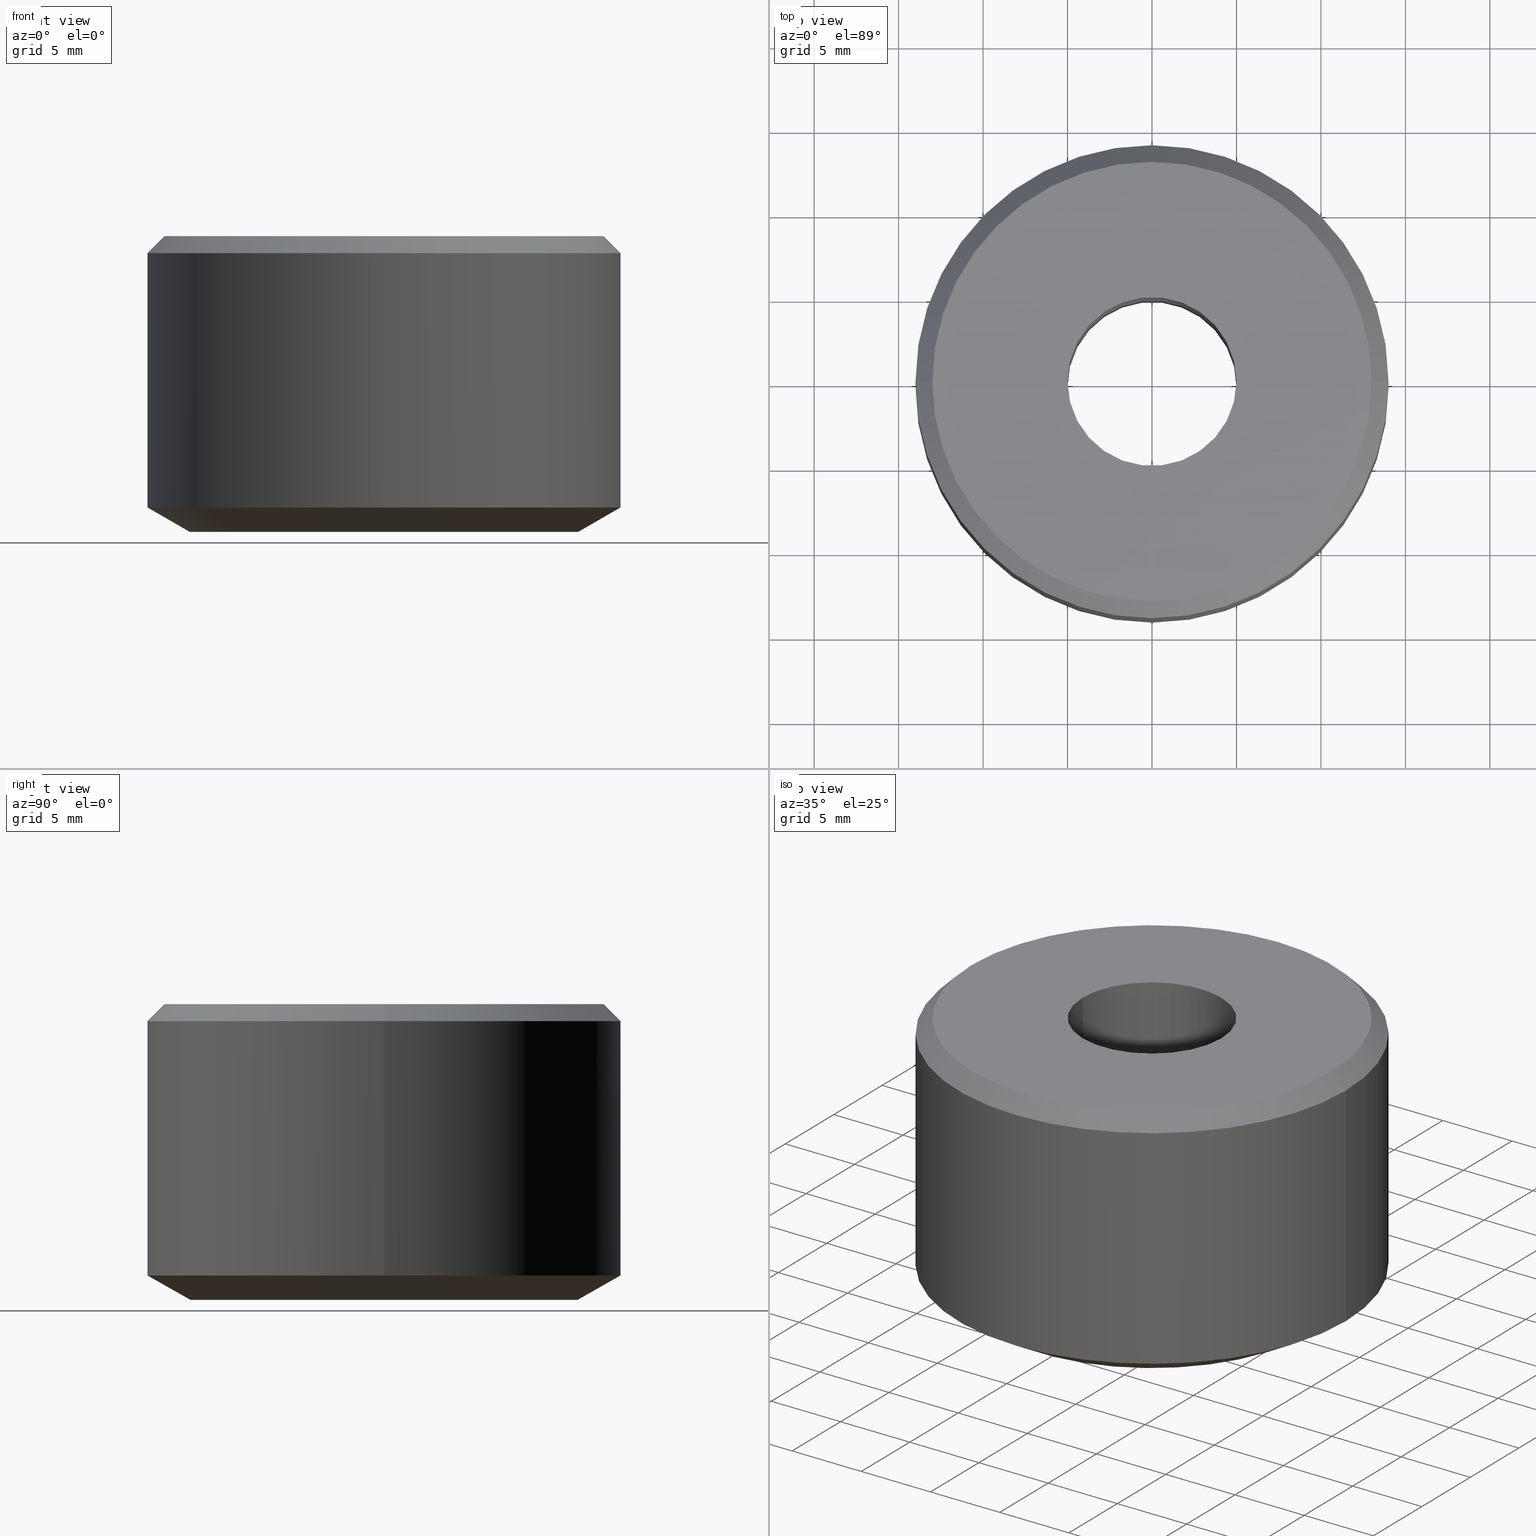
[diagram: canonical four-view strip — front | top / right | iso, engineering-drawing reading convention]
A machine part, canonical four-view strip (front | top / right | iso — engineering-drawing reading convention). The complete STEP part file that produces these views, byte-faithful:
ISO-10303-21;
HEADER;
FILE_DESCRIPTION (( 'STEP AP203' ),
    '1' );
FILE_NAME ('UM ER 16 HEX.STEP',
    '2019-04-22T07:00:55',
    ( '' ),
    ( '' ),
    'SwSTEP 2.0',
    'SolidWorks 2014',
    '' );
FILE_SCHEMA (( 'CONFIG_CONTROL_DESIGN' ));
ENDSEC;

DATA;
#1 = DIRECTION ( 'NONE',  ( 0.0000000000000000000, 0.0000000000000000000, 1.000000000000000000 ) ) ;
#2 = CC_DESIGN_APPROVAL ( #336, ( #246 ) ) ;
#3 = FACE_OUTER_BOUND ( 'NONE', #166, .T. ) ;
#4 = ORIENTED_EDGE ( 'NONE', *, *, #27, .F. ) ;
#5 = CIRCLE ( 'NONE', #317, 14.00000000000001200 ) ;
#6 = ORIENTED_EDGE ( 'NONE', *, *, #293, .T. ) ;
#7 = LOCAL_TIME ( 12, 30, 55.00000000000000000, #71 ) ;
#8 = ORIENTED_EDGE ( 'NONE', *, *, #141, .F. ) ;
#9 = EDGE_LOOP ( 'NONE', ( #316, #244 ) ) ;
#10 = CONICAL_SURFACE ( 'NONE', #29, 14.00000000000001200, 0.7853981633974482800 ) ;
#11 = EDGE_CURVE ( 'NONE', #282, #342, #228, .T. ) ;
#12 = CIRCLE ( 'NONE', #348, 11.50000000000106600 ) ;
#13 = ADVANCED_FACE ( 'NONE', ( #257 ), #55, .T. ) ;
#14 = CALENDAR_DATE ( 2019, 22, 4 ) ;
#15 = EDGE_LOOP ( 'NONE', ( #103, #113, #104, #105 ) ) ;
#16 = AXIS2_PLACEMENT_3D ( 'NONE', #46, #52, #67 ) ;
#17 = VECTOR ( 'NONE', #196, 1000.000000000000000 ) ;
#18 = CONICAL_SURFACE ( 'NONE', #116, 14.00000000000001200, 0.7853981633974482800 ) ;
#19 = CARTESIAN_POINT ( 'NONE',  ( -5.000000000000000000, -5.551115123125782700E-014, 4.611310910794871800E-013 ) ) ;
#20 = DATE_AND_TIME ( #89, #164 ) ;
#21 = ORIENTED_EDGE ( 'NONE', *, *, #99, .T. ) ;
#22 = EDGE_CURVE ( 'NONE', #185, #134, #57, .T. ) ;
#23 = PERSON_AND_ORGANIZATION_ROLE ( 'design_supplier' ) ;
#24 = ORIENTED_EDGE ( 'NONE', *, *, #141, .T. ) ;
#25 = CARTESIAN_POINT ( 'NONE',  ( -14.00000000000001200, -5.551115123125782700E-014, 16.50000000000018100 ) ) ;
#26 = VERTEX_POINT ( 'NONE', #109 ) ;
#27 = EDGE_CURVE ( 'NONE', #161, #101, #286, .T. ) ;
#28 = PERSON_AND_ORGANIZATION ( #259, #125 ) ;
#29 = AXIS2_PLACEMENT_3D ( 'NONE', #132, #117, #41 ) ;
#30 = DIRECTION ( 'NONE',  ( -1.000000000000000000, 0.0000000000000000000, 0.0000000000000000000 ) ) ;
#31 = AXIS2_PLACEMENT_3D ( 'NONE', #346, #170, #220 ) ;
#32 = PERSON_AND_ORGANIZATION_ROLE ( 'design_owner' ) ;
#33 = CARTESIAN_POINT ( 'NONE',  ( -4.999999999999999100, -5.551115123125782700E-014, 17.50000000000007100 ) ) ;
#34 = CARTESIAN_POINT ( 'NONE',  ( 0.0000000000000000000, -5.551115123125782700E-014, 4.831493894172288300E-013 ) ) ;
#35 = CIRCLE ( 'NONE', #50, 4.999999999999999100 ) ;
#36 = ORIENTED_EDGE ( 'NONE', *, *, #283, .T. ) ;
#37 = ORIENTED_EDGE ( 'NONE', *, *, #142, .T. ) ;
#38 = CARTESIAN_POINT ( 'NONE',  ( 0.0000000000000000000, -5.551115123125782700E-014, 17.50000000000007100 ) ) ;
#39 = DIRECTION ( 'NONE',  ( -1.000000000000000000, 0.0000000000000000000, 0.0000000000000000000 ) ) ;
#40 = APPROVAL_ROLE ( '' ) ;
#41 = DIRECTION ( 'NONE',  ( -1.000000000000000000, 0.0000000000000000000, 0.0000000000000000000 ) ) ;
#42 = CYLINDRICAL_SURFACE ( 'NONE', #173, 4.999999999999999100 ) ;
#43 = CARTESIAN_POINT ( 'NONE',  ( 0.0000000000000000000, -5.551115123125782700E-014, 4.440892098500626200E-013 ) ) ;
#44 = EDGE_CURVE ( 'NONE', #26, #118, #325, .T. ) ;
#45 = LOCAL_TIME ( 12, 30, 55.00000000000000000, #119 ) ;
#46 = CARTESIAN_POINT ( 'NONE',  ( 0.0000000000000000000, -5.551115123125782700E-014, 4.611310910794871800E-013 ) ) ;
#47 = AXIS2_PLACEMENT_3D ( 'NONE', #292, #176, #332 ) ;
#48 = LINE ( 'NONE', #263, #262 ) ;
#49 = VERTEX_POINT ( 'NONE', #19 ) ;
#50 = AXIS2_PLACEMENT_3D ( 'NONE', #81, #165, #150 ) ;
#51 = CALENDAR_DATE ( 2019, 22, 4 ) ;
#52 = DIRECTION ( 'NONE',  ( -0.0000000000000000000, -0.0000000000000000000, -1.000000000000000000 ) ) ;
#53 = DIRECTION ( 'NONE',  ( -0.0000000000000000000, -0.0000000000000000000, -1.000000000000000000 ) ) ;
#54 = ORIENTED_EDGE ( 'NONE', *, *, #142, .F. ) ;
#55 = CONICAL_SURFACE ( 'NONE', #31, 11.50000000000106600, 1.047197551196591000 ) ;
#56 = LINE ( 'NONE', #124, #270 ) ;
#57 = CIRCLE ( 'NONE', #47, 14.00000000000001200 ) ;
#58 = PERSON_AND_ORGANIZATION ( #259, #125 ) ;
#59 = AXIS2_PLACEMENT_3D ( 'NONE', #326, #233, #260 ) ;
#60 = ADVANCED_FACE ( 'NONE', ( #169 ), #217, .T. ) ;
#61 = ORIENTED_EDGE ( 'NONE', *, *, #209, .T. ) ;
#62 = CARTESIAN_POINT ( 'NONE',  ( -14.00000000000001200, -5.551115123125782700E-014, 16.50000000000018100 ) ) ;
#63 = CIRCLE ( 'NONE', #187, 11.50000000000106600 ) ;
#64 = AXIS2_PLACEMENT_3D ( 'NONE', #206, #183, #195 ) ;
#65 = DATE_TIME_ROLE ( 'classification_date' ) ;
#66 = LINE ( 'NONE', #135, #17 ) ;
#67 = DIRECTION ( 'NONE',  ( -1.000000000000000000, 0.0000000000000000000, 0.0000000000000000000 ) ) ;
#68 = CARTESIAN_POINT ( 'NONE',  ( -4.999999999999999100, -5.551115123125782700E-014, 4.831493894172288300E-013 ) ) ;
#69 = FACE_OUTER_BOUND ( 'NONE', #251, .T. ) ;
#70 = PERSON_AND_ORGANIZATION_ROLE ( 'creator' ) ;
#71 = COORDINATED_UNIVERSAL_TIME_OFFSET ( 5, 30, .AHEAD. ) ;
#72 = CARTESIAN_POINT ( 'NONE',  ( 11.50000000000106600, -5.551115123125782700E-014, 4.440892098500626200E-013 ) ) ;
#73 =( GEOMETRIC_REPRESENTATION_CONTEXT ( 3 ) GLOBAL_UNCERTAINTY_ASSIGNED_CONTEXT ( ( #245 ) ) GLOBAL_UNIT_ASSIGNED_CONTEXT ( ( #85, #204, #102 ) ) REPRESENTATION_CONTEXT ( 'NONE', 'WORKASPACE' ) );
#74 = ORIENTED_EDGE ( 'NONE', *, *, #107, .F. ) ;
#75 = ORIENTED_EDGE ( 'NONE', *, *, #11, .T. ) ;
#76 = DIRECTION ( 'NONE',  ( -1.000000000000000000, 0.0000000000000000000, 0.0000000000000000000 ) ) ;
#77 = CC_DESIGN_PERSON_AND_ORGANIZATION_ASSIGNMENT ( #230, #318, ( #246 ) ) ;
#78 = DIRECTION ( 'NONE',  ( 0.7071067811865474600, 8.659560562354931600E-017, -0.7071067811865475700 ) ) ;
#79 = APPLICATION_PROTOCOL_DEFINITION ( 'international standard', 'config_control_design', 1994, #163 ) ;
#80 = LOCAL_TIME ( 12, 30, 55.00000000000000000, #159 ) ;
#81 = CARTESIAN_POINT ( 'NONE',  ( 0.0000000000000000000, -5.551115123125782700E-014, 17.50000000000007100 ) ) ;
#82 = AXIS2_PLACEMENT_3D ( 'NONE', #149, #158, #153 ) ;
#83 = ADVANCED_BREP_SHAPE_REPRESENTATION ( 'UM ER 16 HEX', ( #255, #313 ), #73 ) ;
#84 = CARTESIAN_POINT ( 'NONE',  ( 0.0000000000000000000, -5.551115123125782700E-014, 4.831493894172288300E-013 ) ) ;
#85 =( LENGTH_UNIT ( ) NAMED_UNIT ( * ) SI_UNIT ( .MILLI., .METRE. ) );
#86 = EDGE_CURVE ( 'NONE', #26, #177, #12, .T. ) ;
#87 = CARTESIAN_POINT ( 'NONE',  ( 0.0000000000000000000, -5.551115123125782700E-014, 16.50000000000018100 ) ) ;
#88 = ORIENTED_EDGE ( 'NONE', *, *, #344, .T. ) ;
#89 = CALENDAR_DATE ( 2019, 22, 4 ) ;
#90 = CIRCLE ( 'NONE', #106, 14.00000000000001200 ) ;
#91 = AXIS2_PLACEMENT_3D ( 'NONE', #238, #140, #148 ) ;
#92 = CARTESIAN_POINT ( 'NONE',  ( 14.00000000000001200, -5.379664571245152900E-014, 4.831493894172288300E-013 ) ) ;
#93 = ORIENTED_EDGE ( 'NONE', *, *, #283, .F. ) ;
#94 = CARTESIAN_POINT ( 'NONE',  ( -14.00000000000001200, -5.379664571245152900E-014, 1.443375672973923300 ) ) ;
#95 = PERSON_AND_ORGANIZATION ( #259, #125 ) ;
#96 = DIRECTION ( 'NONE',  ( -0.0000000000000000000, -0.0000000000000000000, -1.000000000000000000 ) ) ;
#97 = DIRECTION ( 'NONE',  ( -1.000000000000000000, 0.0000000000000000000, 0.0000000000000000000 ) ) ;
#98 = DIRECTION ( 'NONE',  ( -1.000000000000000000, 0.0000000000000000000, 0.0000000000000000000 ) ) ;
#99 = EDGE_CURVE ( 'NONE', #324, #118, #90, .T. ) ;
#100 = DIRECTION ( 'NONE',  ( 1.000000000000000000, 0.0000000000000000000, -0.0000000000000000000 ) ) ;
#101 = VERTEX_POINT ( 'NONE', #213 ) ;
#102 =( NAMED_UNIT ( * ) SI_UNIT ( $, .STERADIAN. ) SOLID_ANGLE_UNIT ( ) );
#103 = ORIENTED_EDGE ( 'NONE', *, *, #86, .F. ) ;
#104 = ORIENTED_EDGE ( 'NONE', *, *, #198, .T. ) ;
#105 = ORIENTED_EDGE ( 'NONE', *, *, #122, .F. ) ;
#106 = AXIS2_PLACEMENT_3D ( 'NONE', #304, #333, #97 ) ;
#107 = EDGE_CURVE ( 'NONE', #134, #118, #66, .T. ) ;
#108 = LINE ( 'NONE', #92, #300 ) ;
#109 = CARTESIAN_POINT ( 'NONE',  ( -11.50000000000106600, -5.394972656234488400E-014, 4.440892098500626200E-013 ) ) ;
#110 = ORIENTED_EDGE ( 'NONE', *, *, #99, .F. ) ;
#111 = CARTESIAN_POINT ( 'NONE',  ( 0.0000000000000000000, 4.999999999999944900, 4.526101504647749000E-013 ) ) ;
#112 = FACE_OUTER_BOUND ( 'NONE', #129, .T. ) ;
#113 = ORIENTED_EDGE ( 'NONE', *, *, #44, .T. ) ;
#114 = CARTESIAN_POINT ( 'NONE',  ( -11.50000000000106600, -5.410280741223824000E-014, 4.440892098500626200E-013 ) ) ;
#115 = DIRECTION ( 'NONE',  ( -1.000000000000000000, 0.0000000000000000000, 0.0000000000000000000 ) ) ;
#116 = AXIS2_PLACEMENT_3D ( 'NONE', #287, #210, #30 ) ;
#117 = DIRECTION ( 'NONE',  ( -0.0000000000000000000, -0.0000000000000000000, -1.000000000000000000 ) ) ;
#118 = VERTEX_POINT ( 'NONE', #94 ) ;
#119 = COORDINATED_UNIVERSAL_TIME_OFFSET ( 5, 30, .AHEAD. ) ;
#120 = DIRECTION ( 'NONE',  ( -0.0000000000000000000, -0.0000000000000000000, -1.000000000000000000 ) ) ;
#121 = CLOSED_SHELL ( 'NONE', ( #201, #338, #13, #231, #174, #258, #334, #60, #240, #175 ) ) ;
#122 = EDGE_CURVE ( 'NONE', #177, #324, #223, .T. ) ;
#123 = AXIS2_PLACEMENT_3D ( 'NONE', #111, #307, #212 ) ;
#124 = CARTESIAN_POINT ( 'NONE',  ( 4.999999999999999100, -5.489882783168415100E-014, 4.831493894172288300E-013 ) ) ;
#125 = ORGANIZATION ( 'UNSPECIFIED', 'UNSPECIFIED', '' ) ;
#126 = PLANE ( 'NONE',  #181 ) ;
#127 = AXIS2_PLACEMENT_3D ( 'NONE', #184, #120, #266 ) ;
#128 = PRODUCT_RELATED_PRODUCT_CATEGORY ( 'detail', '', ( #315 ) ) ;
#129 = EDGE_LOOP ( 'NONE', ( #75, #88, #232, #339 ) ) ;
#130 = LOCAL_TIME ( 12, 30, 55.00000000000000000, #203 ) ;
#131 = EDGE_CURVE ( 'NONE', #101, #161, #35, .T. ) ;
#132 = CARTESIAN_POINT ( 'NONE',  ( 0.0000000000000000000, -5.551115123125782700E-014, 16.50000000000018100 ) ) ;
#133 = APPLICATION_PROTOCOL_DEFINITION ( 'international standard', 'config_control_design', 1994, #202 ) ;
#134 = VERTEX_POINT ( 'NONE', #25 ) ;
#135 = CARTESIAN_POINT ( 'NONE',  ( -14.00000000000001200, -5.551115123125782700E-014, 4.831493894172288300E-013 ) ) ;
#136 = VECTOR ( 'NONE', #252, 1000.000000000000000 ) ;
#137 = EDGE_LOOP ( 'NONE', ( #156, #4, #291, #36 ) ) ;
#138 = CARTESIAN_POINT ( 'NONE',  ( 0.0000000000000000000, -5.551115123125782700E-014, 17.50000000000007100 ) ) ;
#139 = APPROVAL_DATE_TIME ( #211, #218 ) ;
#140 = DIRECTION ( 'NONE',  ( -0.0000000000000000000, -0.0000000000000000000, -1.000000000000000000 ) ) ;
#141 = EDGE_CURVE ( 'NONE', #342, #282, #214, .T. ) ;
#142 = EDGE_CURVE ( 'NONE', #185, #324, #108, .T. ) ;
#143 = ORIENTED_EDGE ( 'NONE', *, *, #107, .T. ) ;
#144 = CIRCLE ( 'NONE', #16, 5.000000000000000000 ) ;
#145 = CARTESIAN_POINT ( 'NONE',  ( 5.000000000000000000, -5.489882783168415100E-014, 4.611310910794871800E-013 ) ) ;
#146 = PRODUCT_DEFINITION_SHAPE ( 'NONE', 'NONE',  #246 ) ;
#147 = CC_DESIGN_PERSON_AND_ORGANIZATION_ASSIGNMENT ( #95, #32, ( #315 ) ) ;
#148 = DIRECTION ( 'NONE',  ( -1.000000000000000000, 0.0000000000000000000, 0.0000000000000000000 ) ) ;
#149 = CARTESIAN_POINT ( 'NONE',  ( 0.0000000000000000000, -5.551115123125782700E-014, 4.831493894172288300E-013 ) ) ;
#150 = DIRECTION ( 'NONE',  ( -1.000000000000000000, 0.0000000000000000000, 0.0000000000000000000 ) ) ;
#151 = APPROVAL_STATUS ( 'not_yet_approved' ) ;
#152 = APPROVAL_PERSON_ORGANIZATION ( #222, #218, #155 ) ;
#153 = DIRECTION ( 'NONE',  ( -1.000000000000000000, 0.0000000000000000000, 0.0000000000000000000 ) ) ;
#154 = ORIENTED_EDGE ( 'NONE', *, *, #22, .F. ) ;
#155 = APPROVAL_ROLE ( '' ) ;
#156 = ORIENTED_EDGE ( 'NONE', *, *, #209, .F. ) ;
#157 = FACE_BOUND ( 'NONE', #314, .T. ) ;
#158 = DIRECTION ( 'NONE',  ( -0.0000000000000000000, -0.0000000000000000000, -1.000000000000000000 ) ) ;
#159 = COORDINATED_UNIVERSAL_TIME_OFFSET ( 5, 30, .AHEAD. ) ;
#160 = LINE ( 'NONE', #68, #272 ) ;
#161 = VERTEX_POINT ( 'NONE', #33 ) ;
#162 = DIRECTION ( 'NONE',  ( -0.0000000000000000000, -0.0000000000000000000, -1.000000000000000000 ) ) ;
#163 = APPLICATION_CONTEXT ( 'configuration controlled 3d designs of mechanical parts and assemblies' ) ;
#164 = LOCAL_TIME ( 12, 30, 55.00000000000000000, #236 ) ;
#165 = DIRECTION ( 'NONE',  ( -0.0000000000000000000, -0.0000000000000000000, -1.000000000000000000 ) ) ;
#166 = EDGE_LOOP ( 'NONE', ( #276, #24, #191, #154 ) ) ;
#167 = DIRECTION ( 'NONE',  ( -0.0000000000000000000, -0.0000000000000000000, -1.000000000000000000 ) ) ;
#168 = FACE_OUTER_BOUND ( 'NONE', #9, .T. ) ;
#169 = FACE_OUTER_BOUND ( 'NONE', #179, .T. ) ;
#170 = DIRECTION ( 'NONE',  ( 0.0000000000000000000, 0.0000000000000000000, 1.000000000000000000 ) ) ;
#171 = CC_DESIGN_DATE_AND_TIME_ASSIGNMENT ( #341, #65, ( #309 ) ) ;
#172 = SECURITY_CLASSIFICATION_LEVEL ( 'unclassified' ) ;
#173 = AXIS2_PLACEMENT_3D ( 'NONE', #84, #53, #76 ) ;
#174 = ADVANCED_FACE ( 'NONE', ( #200 ), #42, .F. ) ;
#175 = ADVANCED_FACE ( 'NONE', ( #157, #273 ), #126, .T. ) ;
#176 = DIRECTION ( 'NONE',  ( -0.0000000000000000000, -0.0000000000000000000, -1.000000000000000000 ) ) ;
#177 = VERTEX_POINT ( 'NONE', #311 ) ;
#178 = EDGE_CURVE ( 'NONE', #161, #49, #160, .T. ) ;
#179 = EDGE_LOOP ( 'NONE', ( #54, #254, #143, #110 ) ) ;
#180 = EDGE_LOOP ( 'NONE', ( #301, #37, #186, #74 ) ) ;
#181 = AXIS2_PLACEMENT_3D ( 'NONE', #278, #1, #100 ) ;
#182 = DIRECTION ( 'NONE',  ( -0.0000000000000000000, -0.0000000000000000000, -1.000000000000000000 ) ) ;
#183 = DIRECTION ( 'NONE',  ( -0.0000000000000000000, -0.0000000000000000000, -1.000000000000000000 ) ) ;
#184 = CARTESIAN_POINT ( 'NONE',  ( 0.0000000000000000000, -5.551115123125782700E-014, 4.611310910794871800E-013 ) ) ;
#185 = VERTEX_POINT ( 'NONE', #237 ) ;
#186 = ORIENTED_EDGE ( 'NONE', *, *, #198, .F. ) ;
#187 = AXIS2_PLACEMENT_3D ( 'NONE', #43, #208, #306 ) ;
#188 = APPROVAL_DATE_TIME ( #256, #194 ) ;
#189 = SHAPE_DEFINITION_REPRESENTATION ( #146, #83 ) ;
#190 = AXIS2_PLACEMENT_3D ( 'NONE', #226, #250, #39 ) ;
#191 = ORIENTED_EDGE ( 'NONE', *, *, #290, .T. ) ;
#192 = DIRECTION ( 'NONE',  ( -0.0000000000000000000, -0.0000000000000000000, -1.000000000000000000 ) ) ;
#193 = APPROVAL_PERSON_ORGANIZATION ( #265, #194, #337 ) ;
#194 = APPROVAL ( #253, 'UNSPECIFIED' ) ;
#195 = DIRECTION ( 'NONE',  ( -1.000000000000000000, 0.0000000000000000000, 0.0000000000000000000 ) ) ;
#196 = DIRECTION ( 'NONE',  ( -0.0000000000000000000, -0.0000000000000000000, -1.000000000000000000 ) ) ;
#197 = PRODUCT_DEFINITION_FORMATION_WITH_SPECIFIED_SOURCE ( 'ANY', '', #315, .NOT_KNOWN. ) ;
#198 = EDGE_CURVE ( 'NONE', #118, #324, #241, .T. ) ;
#199 = APPROVAL_STATUS ( 'not_yet_approved' ) ;
#200 = FACE_OUTER_BOUND ( 'NONE', #137, .T. ) ;
#201 = ADVANCED_FACE ( 'NONE', ( #112 ), #18, .T. ) ;
#202 = APPLICATION_CONTEXT ( 'configuration controlled 3d designs of mechanical parts and assemblies' ) ;
#203 = COORDINATED_UNIVERSAL_TIME_OFFSET ( 5, 30, .AHEAD. ) ;
#204 =( NAMED_UNIT ( * ) PLANE_ANGLE_UNIT ( ) SI_UNIT ( $, .RADIAN. ) );
#205 = CYLINDRICAL_SURFACE ( 'NONE', #82, 14.00000000000001200 ) ;
#206 = CARTESIAN_POINT ( 'NONE',  ( 0.0000000000000000000, -5.551115123125782700E-014, 1.443375672973923300 ) ) ;
#207 = VECTOR ( 'NONE', #225, 1000.000000000000100 ) ;
#208 = DIRECTION ( 'NONE',  ( -0.0000000000000000000, -0.0000000000000000000, -1.000000000000000000 ) ) ;
#209 = EDGE_CURVE ( 'NONE', #101, #295, #56, .T. ) ;
#210 = DIRECTION ( 'NONE',  ( -0.0000000000000000000, -0.0000000000000000000, -1.000000000000000000 ) ) ;
#211 = DATE_AND_TIME ( #279, #7 ) ;
#212 = DIRECTION ( 'NONE',  ( -1.000000000000000000, 0.0000000000000000000, 0.0000000000000000000 ) ) ;
#213 = CARTESIAN_POINT ( 'NONE',  ( 4.999999999999999100, -5.489882783168415100E-014, 17.50000000000007100 ) ) ;
#214 = CIRCLE ( 'NONE', #190, 13.00000000000012300 ) ;
#215 = CIRCLE ( 'NONE', #127, 5.000000000000000000 ) ;
#216 = EDGE_LOOP ( 'NONE', ( #312, #310, #242, #21 ) ) ;
#217 = CYLINDRICAL_SURFACE ( 'NONE', #227, 14.00000000000001200 ) ;
#218 = APPROVAL ( #199, 'UNSPECIFIED' ) ;
#219 = DIRECTION ( 'NONE',  ( 0.8660254037844351500, 0.0000000000000000000, 0.5000000000000058800 ) ) ;
#220 = DIRECTION ( 'NONE',  ( 1.000000000000000000, 0.0000000000000000000, 0.0000000000000000000 ) ) ;
#221 = PLANE ( 'NONE',  #123 ) ;
#222 = PERSON_AND_ORGANIZATION ( #259, #125 ) ;
#223 = LINE ( 'NONE', #72, #343 ) ;
#224 = ORIENTED_EDGE ( 'NONE', *, *, #131, .F. ) ;
#225 = DIRECTION ( 'NONE',  ( -0.8660254037844351500, 1.060575238724902600E-016, 0.5000000000000058800 ) ) ;
#226 = CARTESIAN_POINT ( 'NONE',  ( 0.0000000000000000000, -5.551115123125782700E-014, 17.50000000000007100 ) ) ;
#227 = AXIS2_PLACEMENT_3D ( 'NONE', #34, #96, #98 ) ;
#228 = CIRCLE ( 'NONE', #319, 13.00000000000012300 ) ;
#229 = CARTESIAN_POINT ( 'NONE',  ( 13.00000000000012300, -5.385787805240889000E-014, 17.50000000000007100 ) ) ;
#230 = PERSON_AND_ORGANIZATION ( #259, #125 ) ;
#231 = ADVANCED_FACE ( 'NONE', ( #69 ), #281, .F. ) ;
#232 = ORIENTED_EDGE ( 'NONE', *, *, #275, .F. ) ;
#233 = DIRECTION ( 'NONE',  ( 0.0000000000000000000, 0.0000000000000000000, 1.000000000000000000 ) ) ;
#234 = CC_DESIGN_DATE_AND_TIME_ASSIGNMENT ( #288, #243, ( #246 ) ) ;
#235 = CARTESIAN_POINT ( 'NONE',  ( 0.0000000000000000000, -5.551115123125782700E-014, 4.440892098500626200E-013 ) ) ;
#236 = COORDINATED_UNIVERSAL_TIME_OFFSET ( 5, 30, .AHEAD. ) ;
#237 = CARTESIAN_POINT ( 'NONE',  ( 14.00000000000001200, -5.379664571245152900E-014, 16.50000000000018100 ) ) ;
#238 = CARTESIAN_POINT ( 'NONE',  ( 0.0000000000000000000, -5.551115123125782700E-014, 4.831493894172288300E-013 ) ) ;
#239 = CARTESIAN_POINT ( 'NONE',  ( -13.00000000000012300, -5.551115123125782700E-014, 17.50000000000007100 ) ) ;
#240 = ADVANCED_FACE ( 'NONE', ( #3 ), #10, .T. ) ;
#241 = CIRCLE ( 'NONE', #64, 14.00000000000001200 ) ;
#242 = ORIENTED_EDGE ( 'NONE', *, *, #122, .T. ) ;
#243 = DATE_TIME_ROLE ( 'creation_date' ) ;
#244 = ORIENTED_EDGE ( 'NONE', *, *, #86, .T. ) ;
#245 = UNCERTAINTY_MEASURE_WITH_UNIT (LENGTH_MEASURE( 1.000000000000000100E-005 ), #85, 'distance_accuracy_value', 'NONE');
#246 = PRODUCT_DEFINITION ( 'UNKNOWN', '', #197, #297 ) ;
#247 = DIRECTION ( 'NONE',  ( -0.0000000000000000000, -0.0000000000000000000, -1.000000000000000000 ) ) ;
#248 = DIRECTION ( 'NONE',  ( -1.000000000000000000, 0.0000000000000000000, 0.0000000000000000000 ) ) ;
#249 = ORIENTED_EDGE ( 'NONE', *, *, #293, .F. ) ;
#250 = DIRECTION ( 'NONE',  ( -0.0000000000000000000, -0.0000000000000000000, -1.000000000000000000 ) ) ;
#251 = EDGE_LOOP ( 'NONE', ( #224, #61, #6, #285 ) ) ;
#252 = DIRECTION ( 'NONE',  ( -0.7071067811865474600, 0.0000000000000000000, -0.7071067811865475700 ) ) ;
#253 = APPROVAL_STATUS ( 'not_yet_approved' ) ;
#254 = ORIENTED_EDGE ( 'NONE', *, *, #22, .T. ) ;
#255 = MANIFOLD_SOLID_BREP ( 'Revolve1', #121 ) ;
#256 = DATE_AND_TIME ( #330, #45 ) ;
#257 = FACE_OUTER_BOUND ( 'NONE', #15, .T. ) ;
#258 = ADVANCED_FACE ( 'NONE', ( #168, #284 ), #221, .T. ) ;
#259 = PERSON ( 'UNSPECIFIED', 'UNSPECIFIED', 'UNSPECIFIED', ('UNSPECIFIED'), ('UNSPECIFIED'), ('UNSPECIFIED') ) ;
#260 = DIRECTION ( 'NONE',  ( 1.000000000000000000, 0.0000000000000000000, 0.0000000000000000000 ) ) ;
#261 = PERSON_AND_ORGANIZATION_ROLE ( 'classification_officer' ) ;
#262 = VECTOR ( 'NONE', #78, 1000.000000000000000 ) ;
#263 = CARTESIAN_POINT ( 'NONE',  ( 14.00000000000001200, -5.379664571245152900E-014, 16.50000000000018100 ) ) ;
#264 = ORIENTED_EDGE ( 'NONE', *, *, #27, .T. ) ;
#265 = PERSON_AND_ORGANIZATION ( #259, #125 ) ;
#266 = DIRECTION ( 'NONE',  ( -1.000000000000000000, 0.0000000000000000000, 0.0000000000000000000 ) ) ;
#267 = CARTESIAN_POINT ( 'NONE',  ( 0.0000000000000000000, 0.0000000000000000000, 0.0000000000000000000 ) ) ;
#268 = EDGE_CURVE ( 'NONE', #177, #26, #63, .T. ) ;
#269 = FACE_OUTER_BOUND ( 'NONE', #180, .T. ) ;
#270 = VECTOR ( 'NONE', #182, 1000.000000000000000 ) ;
#271 = DIRECTION ( 'NONE',  ( -1.000000000000000000, 0.0000000000000000000, 0.0000000000000000000 ) ) ;
#272 = VECTOR ( 'NONE', #162, 1000.000000000000000 ) ;
#273 = FACE_OUTER_BOUND ( 'NONE', #331, .T. ) ;
#274 = PERSON_AND_ORGANIZATION ( #259, #125 ) ;
#275 = EDGE_CURVE ( 'NONE', #134, #185, #5, .T. ) ;
#276 = ORIENTED_EDGE ( 'NONE', *, *, #344, .F. ) ;
#277 = LINE ( 'NONE', #62, #136 ) ;
#278 = CARTESIAN_POINT ( 'NONE',  ( 0.0000000000000000000, 13.00000000000006800, 17.50000000000007100 ) ) ;
#279 = CALENDAR_DATE ( 2019, 22, 4 ) ;
#280 = DIRECTION ( 'NONE',  ( 1.000000000000000000, 0.0000000000000000000, 0.0000000000000000000 ) ) ;
#281 = CYLINDRICAL_SURFACE ( 'NONE', #91, 4.999999999999999100 ) ;
#282 = VERTEX_POINT ( 'NONE', #239 ) ;
#283 = EDGE_CURVE ( 'NONE', #49, #295, #144, .T. ) ;
#284 = FACE_BOUND ( 'NONE', #328, .T. ) ;
#285 = ORIENTED_EDGE ( 'NONE', *, *, #178, .F. ) ;
#286 = CIRCLE ( 'NONE', #303, 4.999999999999999100 ) ;
#287 = CARTESIAN_POINT ( 'NONE',  ( 0.0000000000000000000, -5.551115123125782700E-014, 16.50000000000018100 ) ) ;
#288 = DATE_AND_TIME ( #14, #80 ) ;
#289 = DIRECTION ( 'NONE',  ( 0.0000000000000000000, 0.0000000000000000000, 1.000000000000000000 ) ) ;
#290 = EDGE_CURVE ( 'NONE', #282, #134, #277, .T. ) ;
#291 = ORIENTED_EDGE ( 'NONE', *, *, #178, .T. ) ;
#292 = CARTESIAN_POINT ( 'NONE',  ( 0.0000000000000000000, -5.551115123125782700E-014, 16.50000000000018100 ) ) ;
#293 = EDGE_CURVE ( 'NONE', #295, #49, #215, .T. ) ;
#294 = CC_DESIGN_APPROVAL ( #218, ( #197 ) ) ;
#295 = VERTEX_POINT ( 'NONE', #145 ) ;
#296 = ORIENTED_EDGE ( 'NONE', *, *, #131, .T. ) ;
#297 = DESIGN_CONTEXT ( 'detailed design', #202, 'design' ) ;
#298 = CC_DESIGN_PERSON_AND_ORGANIZATION_ASSIGNMENT ( #58, #70, ( #197 ) ) ;
#299 = APPROVAL_DATE_TIME ( #20, #336 ) ;
#300 = VECTOR ( 'NONE', #320, 1000.000000000000000 ) ;
#301 = ORIENTED_EDGE ( 'NONE', *, *, #275, .T. ) ;
#302 = MECHANICAL_CONTEXT ( 'NONE', #163, 'mechanical' ) ;
#303 = AXIS2_PLACEMENT_3D ( 'NONE', #38, #322, #248 ) ;
#304 = CARTESIAN_POINT ( 'NONE',  ( 0.0000000000000000000, -5.551115123125782700E-014, 1.443375672973923300 ) ) ;
#305 = CC_DESIGN_PERSON_AND_ORGANIZATION_ASSIGNMENT ( #349, #23, ( #197 ) ) ;
#306 = DIRECTION ( 'NONE',  ( -1.000000000000000000, 0.0000000000000000000, 0.0000000000000000000 ) ) ;
#307 = DIRECTION ( 'NONE',  ( -0.0000000000000000000, 0.0000000000000000000, -1.000000000000000000 ) ) ;
#308 = APPROVAL_PERSON_ORGANIZATION ( #28, #336, #40 ) ;
#309 = SECURITY_CLASSIFICATION ( '', '', #172 ) ;
#310 = ORIENTED_EDGE ( 'NONE', *, *, #268, .F. ) ;
#311 = CARTESIAN_POINT ( 'NONE',  ( 11.50000000000106600, -5.551115123125782700E-014, 4.440892098500626200E-013 ) ) ;
#312 = ORIENTED_EDGE ( 'NONE', *, *, #44, .F. ) ;
#313 = AXIS2_PLACEMENT_3D ( 'NONE', #267, #289, #280 ) ;
#314 = EDGE_LOOP ( 'NONE', ( #264, #296 ) ) ;
#315 = PRODUCT ( 'UM ER 16 HEX', 'UM ER 16 HEX', '', ( #302 ) ) ;
#316 = ORIENTED_EDGE ( 'NONE', *, *, #268, .T. ) ;
#317 = AXIS2_PLACEMENT_3D ( 'NONE', #87, #167, #115 ) ;
#318 = PERSON_AND_ORGANIZATION_ROLE ( 'creator' ) ;
#319 = AXIS2_PLACEMENT_3D ( 'NONE', #138, #247, #327 ) ;
#320 = DIRECTION ( 'NONE',  ( -0.0000000000000000000, -0.0000000000000000000, -1.000000000000000000 ) ) ;
#321 = ORIENTED_EDGE ( 'NONE', *, *, #11, .F. ) ;
#322 = DIRECTION ( 'NONE',  ( -0.0000000000000000000, -0.0000000000000000000, -1.000000000000000000 ) ) ;
#323 = CARTESIAN_POINT ( 'NONE',  ( 14.00000000000001200, -5.551115123125782700E-014, 1.443375672973923300 ) ) ;
#324 = VERTEX_POINT ( 'NONE', #323 ) ;
#325 = LINE ( 'NONE', #114, #207 ) ;
#326 = CARTESIAN_POINT ( 'NONE',  ( 0.0000000000000000000, -5.551115123125782700E-014, 4.440892098500626200E-013 ) ) ;
#327 = DIRECTION ( 'NONE',  ( -1.000000000000000000, 0.0000000000000000000, 0.0000000000000000000 ) ) ;
#328 = EDGE_LOOP ( 'NONE', ( #93, #249 ) ) ;
#329 = CC_DESIGN_PERSON_AND_ORGANIZATION_ASSIGNMENT ( #274, #261, ( #309 ) ) ;
#330 = CALENDAR_DATE ( 2019, 22, 4 ) ;
#331 = EDGE_LOOP ( 'NONE', ( #321, #8 ) ) ;
#332 = DIRECTION ( 'NONE',  ( -1.000000000000000000, 0.0000000000000000000, 0.0000000000000000000 ) ) ;
#333 = DIRECTION ( 'NONE',  ( -0.0000000000000000000, -0.0000000000000000000, -1.000000000000000000 ) ) ;
#334 = ADVANCED_FACE ( 'NONE', ( #345 ), #335, .T. ) ;
#335 = CONICAL_SURFACE ( 'NONE', #59, 11.50000000000106600, 1.047197551196591000 ) ;
#336 = APPROVAL ( #151, 'UNSPECIFIED' ) ;
#337 = APPROVAL_ROLE ( '' ) ;
#338 = ADVANCED_FACE ( 'NONE', ( #269 ), #205, .T. ) ;
#339 = ORIENTED_EDGE ( 'NONE', *, *, #290, .F. ) ;
#340 = CC_DESIGN_APPROVAL ( #194, ( #309 ) ) ;
#341 = DATE_AND_TIME ( #51, #130 ) ;
#342 = VERTEX_POINT ( 'NONE', #229 ) ;
#343 = VECTOR ( 'NONE', #219, 1000.000000000000100 ) ;
#344 = EDGE_CURVE ( 'NONE', #342, #185, #48, .T. ) ;
#345 = FACE_OUTER_BOUND ( 'NONE', #216, .T. ) ;
#346 = CARTESIAN_POINT ( 'NONE',  ( 0.0000000000000000000, -5.551115123125782700E-014, 4.440892098500626200E-013 ) ) ;
#347 = CC_DESIGN_SECURITY_CLASSIFICATION ( #309, ( #197 ) ) ;
#348 = AXIS2_PLACEMENT_3D ( 'NONE', #235, #192, #271 ) ;
#349 = PERSON_AND_ORGANIZATION ( #259, #125 ) ;
ENDSEC;
END-ISO-10303-21;
